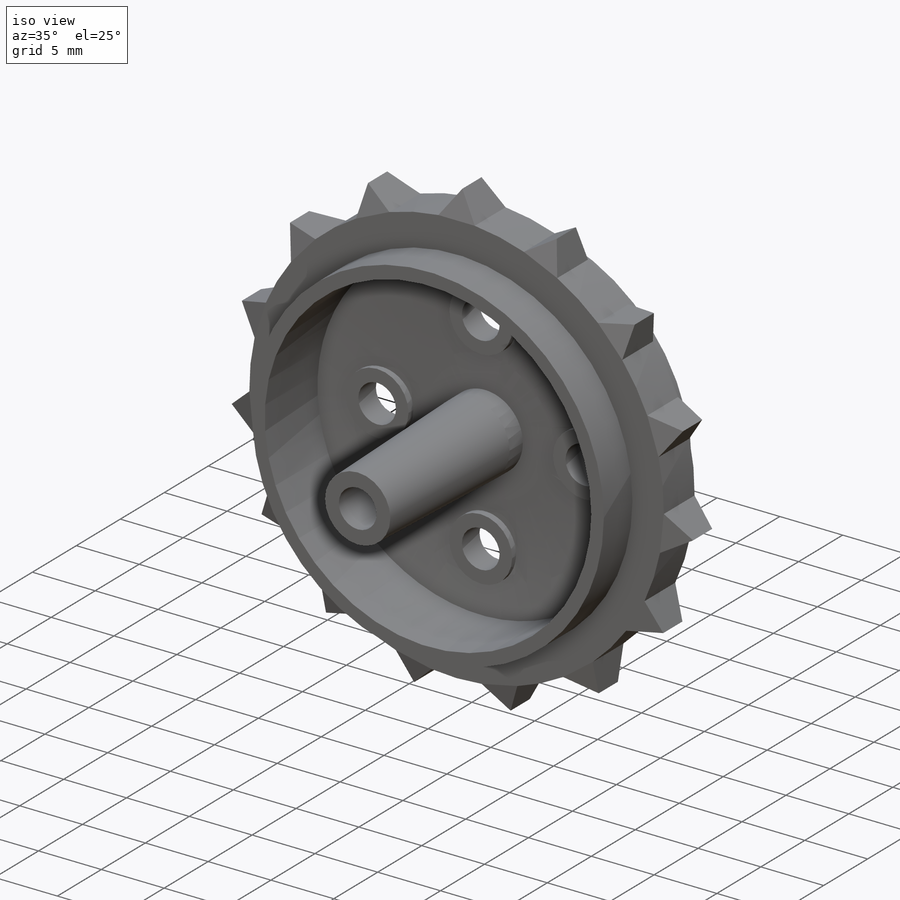
[diagram: iso view]
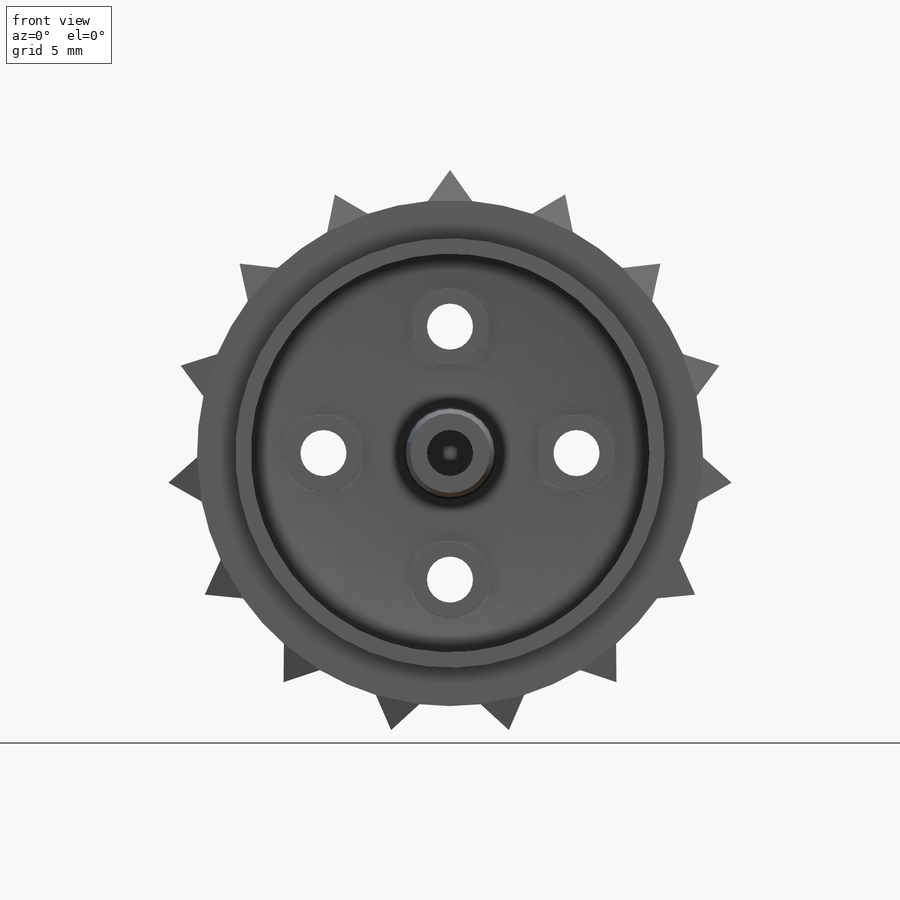
[diagram: front view]
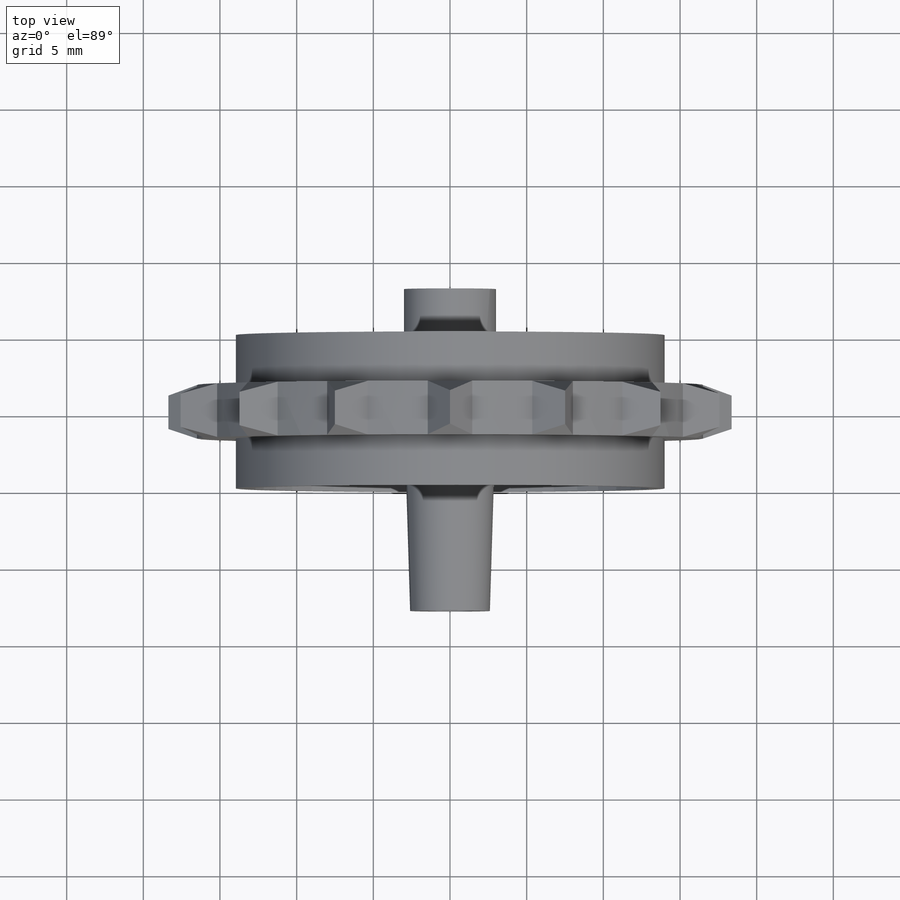
[diagram: top view]
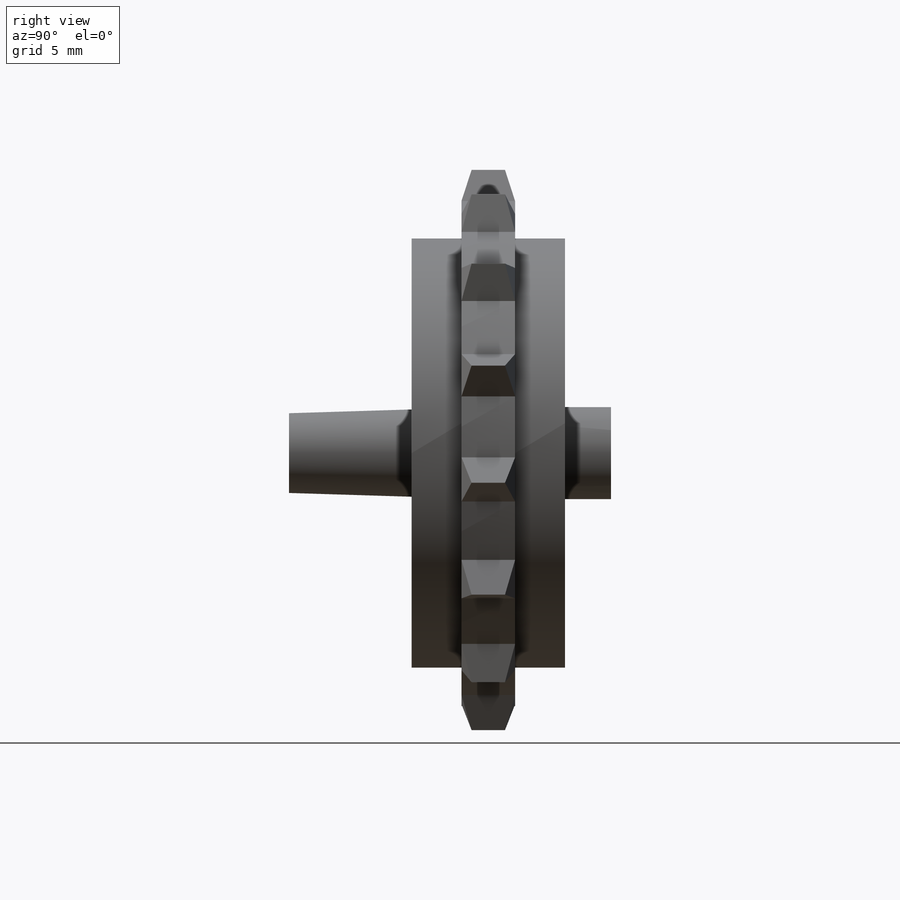
[diagram: right view]
SOLIDWORKS PART (.sldprt)
format: sldprt  version: not decoded by parser v0  size: 438,272 bytes
history: native  units: mm
features: sketch x7, extrude x4, cut_extrude x2, material x1, revolve x1, plane x1, fillet x1, pattern_circular x1 (+11 scaffold rows collapsed)
feature tree (29):
  scaffold x11  (default folders/planes/origin — collapsed)
  material  "Material <not specified>"
  sketch  "Sketch1"  dims[c1.D1=1.0mm c1.D2=5.0mm c1.D3=13.0mm c2.D2=5.0mm c2.D4=1.75mm c2.D5=2.5mm c2.D6=~3.280952mm c2.D7=7.0mm c2.D8=3.0mm c3.D6=1.5mm c3.D7=1.5mm c3.D8=7.0mm c3.D9=13.0mm c3.D10=4.5mm c3.D11=3.0mm c3.D12=1.0mm c3.D13=1.1mm]
  revolve  "Revolve1"  Angle=360deg
  sketch  "Sketch4"  dims[D1=3.0mm D2=4.0]
  cut_extrude  "Cut-Extrude1"  Depth=14.25mm
  plane  "Plane1"  Offset=4.5mm
  sketch  "Sketch5"  dims[D1=1.0mm D2=4.0]
  extrude  "Boss-Extrude3"  Depth=1.5mm
  sketch  "Sketch6"
  extrude  "Boss-Extrude4"  Depth=1mm
  fillet  "Fillet2"  Radius=0.25mm
  sketch  "Sketch7"
  extrude  "Boss-Extrude5"  Depth=1mm
  sketch  "Sketch8"  dims[c1.D1=~4.305547mm c2.D1=90.0deg c2.D2=2.9mm c3.D1=2.9mm]
  extrude  "Boss-Extrude6"  [1 undecoded]
  sketch  "Sketch9"  dims[c1.D1=~2.031325mm c2.D1=18.0deg]
  cut_extrude  "Cut-Extrude2"  [1 undecoded]
  pattern_circular  "CirPattern1"  Count=15 Angle=360deg
decode coverage: 12 of 16 modeling features carry decoded parameters
note: ~ marks probable driven/reference dimensions
note: 2 parameter values undecoded
note: suppression state not decoded; provenance and decode notes live in map.json
